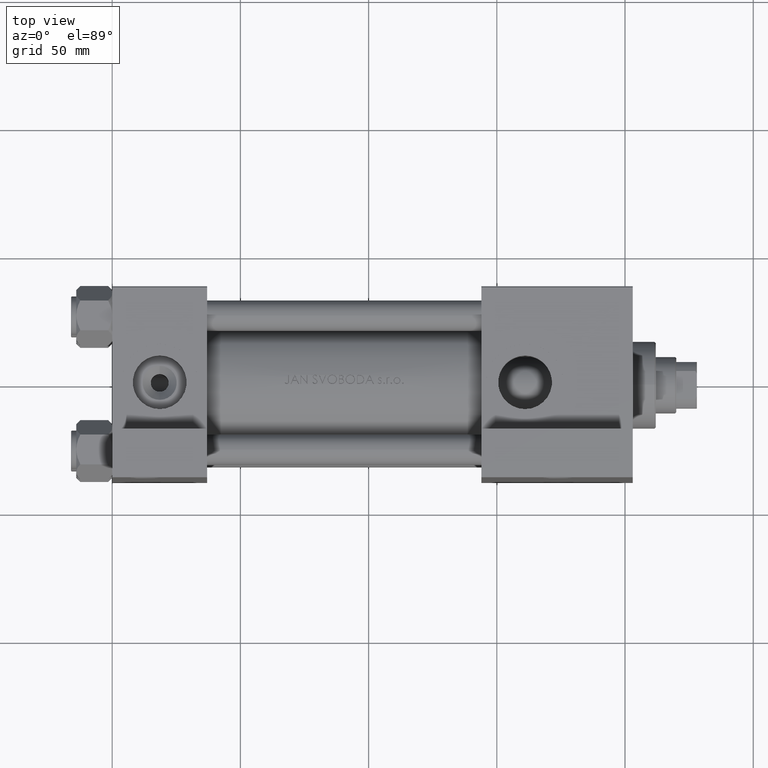
[diagram: clean part render]
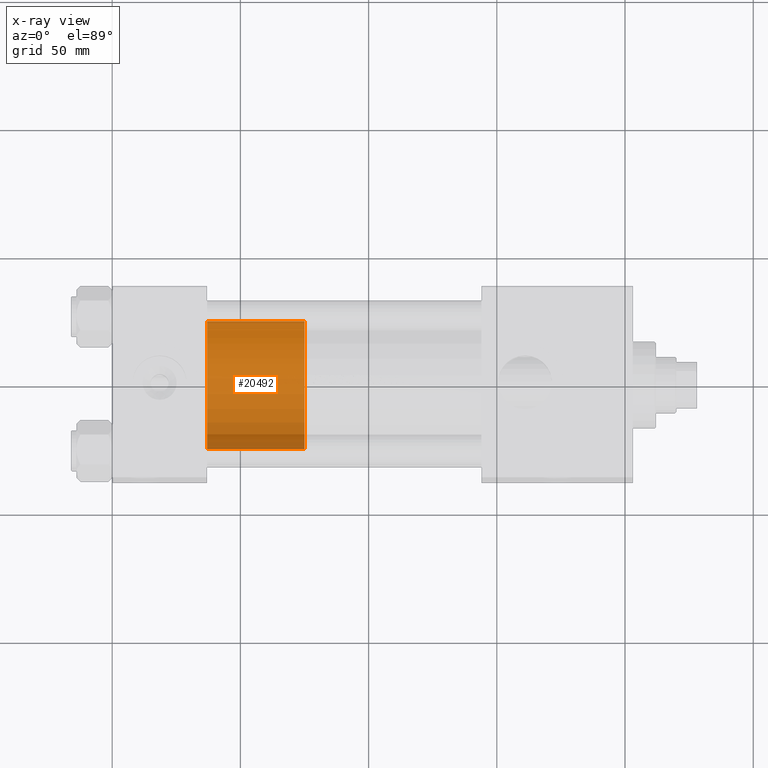
[diagram: x-ray — body ghosted, one internal face saturated and labeled with its STEP entity id]
A machine part, top view, then the same camera in x-ray: the body is ghosted and one INTERNAL B-rep face — a face not visible from any outside direction — is saturated and labeled: STEP entity #20492.
In plain terms, the highlighted cylindrical surface (partial cylindrical patch) has radius 25 mm, axis along (-1, 0, 0).
Its self-contained STEP definition (entity closure, byte-faithful):
#608 = EDGE_CURVE ( 'NONE', #15235, #20287, #1589, .T. ) ;
#1589 = LINE ( 'NONE', #35445, #12985 ) ;
#5802 = DIRECTION ( 'NONE',  ( -0.000000000000000000, -0.000000000000000000, -1.000000000000000000 ) ) ;
#8293 = ORIENTED_EDGE ( 'NONE', *, *, #28113, .T. ) ;
#9968 = FACE_OUTER_BOUND ( 'NONE', #33072, .T. ) ;
#12985 = VECTOR ( 'NONE', #5802, 1000.000000000000000 ) ;
#14216 = CARTESIAN_POINT ( 'NONE',  ( 0.000000000000000000, 0.000000000000000000, 38.00000000000000000 ) ) ;
#15235 = VERTEX_POINT ( 'NONE', #19028 ) ;
#15547 = VERTEX_POINT ( 'NONE', #42379 ) ;
#16981 = DIRECTION ( 'NONE',  ( 1.000000000000000000, 0.000000000000000000, 0.000000000000000000 ) ) ;
#17482 = DIRECTION ( 'NONE',  ( 1.000000000000000000, 0.000000000000000000, 0.000000000000000000 ) ) ;
#17634 = AXIS2_PLACEMENT_3D ( 'NONE', #44384, #25669, #16981 ) ;
#18414 = DIRECTION ( 'NONE',  ( -0.000000000000000000, -0.000000000000000000, -1.000000000000000000 ) ) ;
#18667 = AXIS2_PLACEMENT_3D ( 'NONE', #48105, #36398, #17482 ) ;
#18712 = ORIENTED_EDGE ( 'NONE', *, *, #47345, .F. ) ;
#19028 = CARTESIAN_POINT ( 'NONE',  ( 25.00000000000000000, 3.061616997868383043E-15, 38.00000000000000000 ) ) ;
#20287 = VERTEX_POINT ( 'NONE', #34633 ) ;
#20492 = ADVANCED_FACE ( 'NONE', ( #9968 ), #48323, .T. ) ;
#23940 = CIRCLE ( 'NONE', #17634, 25.00000000000000000 ) ;
#25669 = DIRECTION ( 'NONE',  ( 0.000000000000000000, 0.000000000000000000, 1.000000000000000000 ) ) ;
#28113 = EDGE_CURVE ( 'NONE', #20287, #37867, #36981, .T. ) ;
#29358 = CARTESIAN_POINT ( 'NONE',  ( -25.00000000000000000, 0.000000000000000000, 38.00000000000000000 ) ) ;
#29366 = DIRECTION ( 'NONE',  ( -0.000000000000000000, -0.000000000000000000, -1.000000000000000000 ) ) ;
#32665 = CARTESIAN_POINT ( 'NONE',  ( -25.00000000000000000, 0.000000000000000000, 0.000000000000000000 ) ) ;
#33072 = EDGE_LOOP ( 'NONE', ( #18712, #46772, #8293, #34916 ) ) ;
#34633 = CARTESIAN_POINT ( 'NONE',  ( 25.00000000000000000, 3.061616997868383043E-15, 0.000000000000000000 ) ) ;
#34916 = ORIENTED_EDGE ( 'NONE', *, *, #37552, .F. ) ;
#35445 = CARTESIAN_POINT ( 'NONE',  ( 25.00000000000000000, 3.061616997868383043E-15, 38.00000000000000000 ) ) ;
#35680 = VECTOR ( 'NONE', #18414, 1000.000000000000000 ) ;
#36398 = DIRECTION ( 'NONE',  ( 0.000000000000000000, 0.000000000000000000, 1.000000000000000000 ) ) ;
#36981 = CIRCLE ( 'NONE', #18667, 25.00000000000000000 ) ;
#37552 = EDGE_CURVE ( 'NONE', #15547, #37867, #40610, .T. ) ;
#37867 = VERTEX_POINT ( 'NONE', #32665 ) ;
#40610 = LINE ( 'NONE', #29358, #35680 ) ;
#42379 = CARTESIAN_POINT ( 'NONE',  ( -25.00000000000000000, 0.000000000000000000, 38.00000000000000000 ) ) ;
#44384 = CARTESIAN_POINT ( 'NONE',  ( 0.000000000000000000, 0.000000000000000000, 38.00000000000000000 ) ) ;
#44599 = DIRECTION ( 'NONE',  ( -1.000000000000000000, 0.000000000000000000, 0.000000000000000000 ) ) ;
#46772 = ORIENTED_EDGE ( 'NONE', *, *, #608, .T. ) ;
#47345 = EDGE_CURVE ( 'NONE', #15235, #15547, #23940, .T. ) ;
#48105 = CARTESIAN_POINT ( 'NONE',  ( 0.000000000000000000, 0.000000000000000000, 0.000000000000000000 ) ) ;
#48323 = CYLINDRICAL_SURFACE ( 'NONE', #48526, 25.00000000000000000 ) ;
#48526 = AXIS2_PLACEMENT_3D ( 'NONE', #14216, #29366, #44599 ) ;